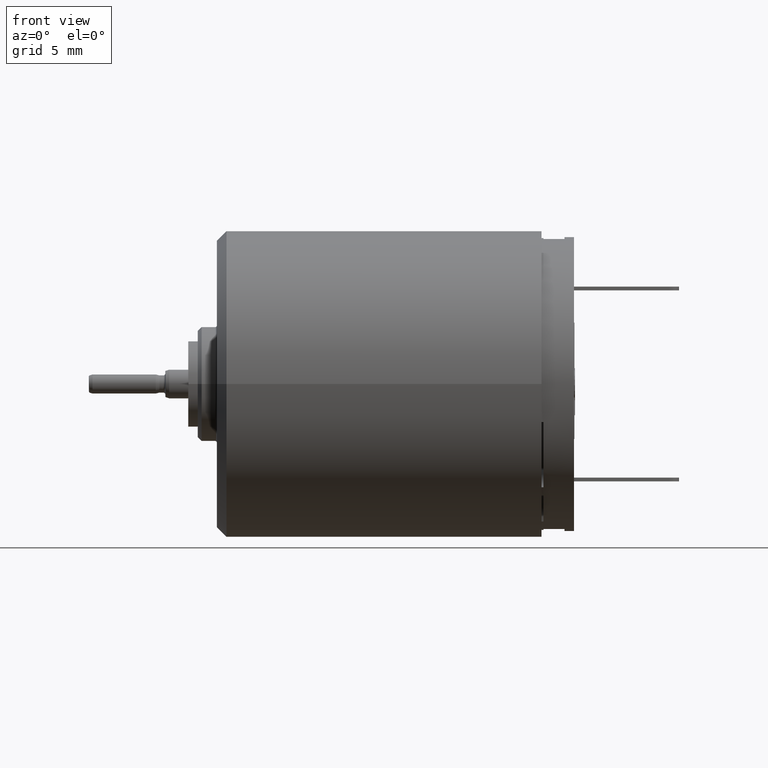
[diagram: clean part render]
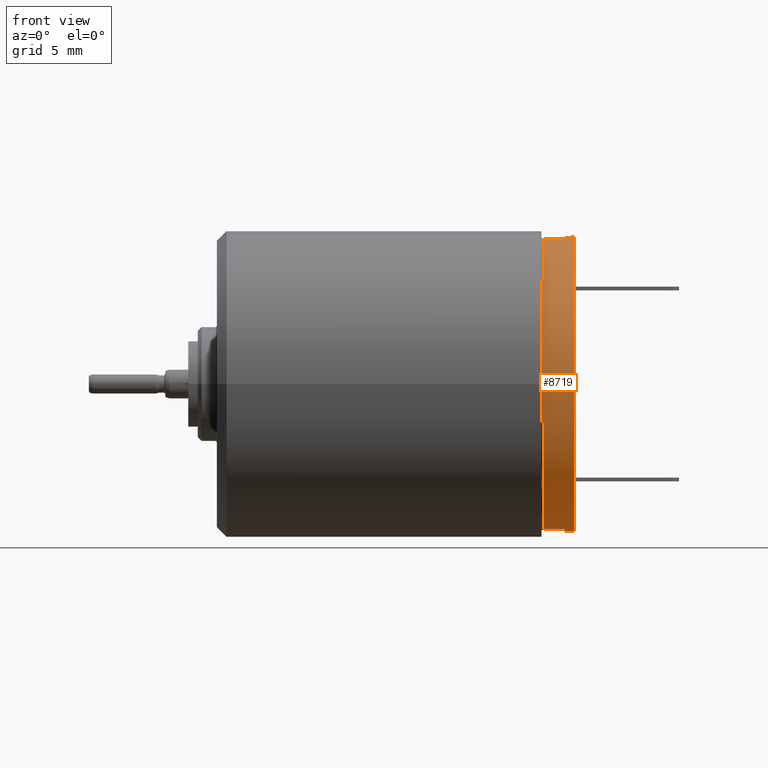
[diagram: same view with one face highlighted and labeled with its STEP entity id]
A machine part, front view. The second image highlights one B-rep face of the part: STEP entity #8719.
In plain terms, the highlighted cylindrical surface (partial cylindrical patch) has radius 7.7 mm, axis along (1, 0, 0).
Its self-contained STEP definition (entity closure, byte-faithful):
#9=CARTESIAN_POINT('',(1.7E0,1.203827803561E-14,0.E0));
#10=DIRECTION('',(-1.E0,0.E0,0.E0));
#11=DIRECTION('',(0.E0,9.656785166245E-1,-2.597402597402E-1));
#12=AXIS2_PLACEMENT_3D('',#9,#10,#11);
#14=CARTESIAN_POINT('',(1.7E0,1.203827803561E-14,0.E0));
#15=DIRECTION('',(-1.E0,0.E0,0.E0));
#16=DIRECTION('',(0.E0,4.590222619104E-14,-1.E0));
#17=AXIS2_PLACEMENT_3D('',#14,#15,#16);
#760=DIRECTION('',(1.E0,-1.312081756375E-13,-1.049665405100E-14));
#761=VECTOR('',#760,1.1E0);
#762=CARTESIAN_POINT('',(1.E-1,1.3E0,7.589466384404E0));
#763=LINE('',#762,#761);
#793=CARTESIAN_POINT('',(1.E-1,1.223422152348E-14,0.E0));
#794=DIRECTION('',(1.E0,0.E0,0.E0));
#795=DIRECTION('',(0.E0,9.656785166245E-1,2.597402597402E-1));
#796=AXIS2_PLACEMENT_3D('',#793,#794,#795);
#857=DIRECTION('',(-1.E0,-9.677592061053E-11,-9.614531393254E-11));
#858=VECTOR('',#857,1.E-1);
#859=CARTESIAN_POINT('',(1.E-1,-5.444722215136E0,5.444722215136E0));
#860=LINE('',#859,#858);
#880=CARTESIAN_POINT('',(1.E-1,1.223422152348E-14,0.E0));
#881=DIRECTION('',(1.E0,0.E0,0.E0));
#882=DIRECTION('',(0.E0,-1.688311688312E-1,9.856449849875E-1));
#883=AXIS2_PLACEMENT_3D('',#880,#881,#882);
#897=DIRECTION('',(-1.E0,-7.024683864901E-14,-4.521635591201E-14));
#898=VECTOR('',#897,1.1E0);
#899=CARTESIAN_POINT('',(1.2E0,-1.3E0,7.589466384404E0));
#900=LINE('',#899,#898);
#990=CARTESIAN_POINT('',(1.E-1,1.223422152348E-14,0.E0));
#991=DIRECTION('',(1.E0,0.E0,0.E0));
#992=DIRECTION('',(0.E0,-9.659258262891E-1,-2.588190451025E-1));
#993=AXIS2_PLACEMENT_3D('',#990,#991,#992);
#1039=DIRECTION('',(-1.E0,-1.132427485118E-13,-6.175615574477E-14));
#1040=VECTOR('',#1039,1.6E0);
#1041=CARTESIAN_POINT('',(1.7E0,7.435724578009E0,-2.E0));
#1042=LINE('',#1041,#1040);
#1043=DIRECTION('',(-1.E0,-4.178475747226E-14,-2.583791766400E-14));
#1044=VECTOR('',#1043,1.1E0);
#1045=CARTESIAN_POINT('',(1.2E0,-1.3E0,-7.589466384404E0));
#1046=LINE('',#1045,#1044);
#1067=CARTESIAN_POINT('',(0.E0,1.224646799147E-14,0.E0));
#1068=DIRECTION('',(1.E0,0.E0,0.E0));
#1069=DIRECTION('',(0.E0,-7.071067811865E-1,7.071067811865E-1));
#1070=AXIS2_PLACEMENT_3D('',#1067,#1068,#1069);
#1894=DIRECTION('',(1.E0,-2.042810365310E-12,1.589839371263E-12));
#1895=VECTOR('',#1894,1.E-1);
#1896=CARTESIAN_POINT('',(0.E0,-7.437628862426E0,-1.992906647289E0));
#1897=LINE('',#1896,#1895);
#1973=CARTESIAN_POINT('',(1.2E0,1.209951037557E-14,0.E0));
#1974=DIRECTION('',(1.E0,0.E0,0.E0));
#1975=DIRECTION('',(0.E0,-1.688311688312E-1,-9.856449849875E-1));
#1976=AXIS2_PLACEMENT_3D('',#1973,#1974,#1975);
#1978=CARTESIAN_POINT('',(1.2E0,1.209951037557E-14,0.E0));
#1979=DIRECTION('',(1.E0,0.E0,0.E0));
#1980=DIRECTION('',(0.E0,-3.603153418974E-14,-1.E0));
#1981=AXIS2_PLACEMENT_3D('',#1978,#1979,#1980);
#2007=CARTESIAN_POINT('',(1.2E0,1.209951037557E-14,0.E0));
#2008=DIRECTION('',(1.E0,0.E0,0.E0));
#2009=DIRECTION('',(0.E0,1.688311688312E-1,9.856449849875E-1));
#2010=AXIS2_PLACEMENT_3D('',#2007,#2008,#2009);
#2043=DIRECTION('',(-1.E0,7.791747045551E-14,4.602379083901E-14));
#2044=VECTOR('',#2043,1.1E0);
#2045=CARTESIAN_POINT('',(1.2E0,1.3E0,-7.589466384404E0));
#2046=LINE('',#2045,#2044);
#2090=CARTESIAN_POINT('',(1.E-1,1.223422152348E-14,0.E0));
#2091=DIRECTION('',(1.E0,0.E0,0.E0));
#2092=DIRECTION('',(0.E0,1.688311688312E-1,-9.856449849875E-1));
#2093=AXIS2_PLACEMENT_3D('',#2090,#2091,#2092);
#2177=DIRECTION('',(-1.E0,1.237898672457E-13,-9.978129433819E-14));
#2178=VECTOR('',#2177,1.6E0);
#2179=CARTESIAN_POINT('',(1.7E0,7.435724578009E0,2.E0));
#2180=LINE('',#2179,#2178);
#5945=CARTESIAN_POINT('',(1.7E0,7.435724578009E0,-2.E0));
#5946=CARTESIAN_POINT('',(1.7E0,3.655332890763E-13,-7.7E0));
#5947=VERTEX_POINT('',#5945);
#5948=VERTEX_POINT('',#5946);
#5949=CARTESIAN_POINT('',(1.7E0,7.435724578008E0,2.E0));
#5950=VERTEX_POINT('',#5949);
#6317=CARTESIAN_POINT('',(1.E-1,7.435724578009E0,-2.E0));
#6319=VERTEX_POINT('',#6317);
#6488=CARTESIAN_POINT('',(1.2E0,-1.3E0,-7.589466384404E0));
#6489=CARTESIAN_POINT('',(1.2E0,-2.656782903856E-13,-7.7E0));
#6490=VERTEX_POINT('',#6488);
#6491=VERTEX_POINT('',#6489);
#6492=CARTESIAN_POINT('',(1.2E0,1.3E0,-7.589466384404E0));
#6493=VERTEX_POINT('',#6492);
#6506=CARTESIAN_POINT('',(1.2E0,1.3E0,7.589466384404E0));
#6507=VERTEX_POINT('',#6506);
#6508=CARTESIAN_POINT('',(1.2E0,-1.3E0,7.589466384404E0));
#6509=VERTEX_POINT('',#6508);
#6738=CARTESIAN_POINT('',(1.E-1,-7.437628862426E0,-1.992906647289E0));
#6739=VERTEX_POINT('',#6738);
#6740=CARTESIAN_POINT('',(1.E-1,-1.3E0,-7.589466384404E0));
#6741=VERTEX_POINT('',#6740);
#6746=CARTESIAN_POINT('',(0.E0,-7.437628862426E0,-1.992906647289E0));
#6748=VERTEX_POINT('',#6746);
#6750=CARTESIAN_POINT('',(0.E0,-5.444722215136E0,5.444722215136E0));
#6751=VERTEX_POINT('',#6750);
#6930=CARTESIAN_POINT('',(1.E-1,-5.444722215136E0,5.444722215136E0));
#6931=VERTEX_POINT('',#6930);
#7048=CARTESIAN_POINT('',(1.E-1,1.3E0,-7.589466384404E0));
#7049=VERTEX_POINT('',#7048);
#7058=CARTESIAN_POINT('',(1.E-1,7.435724578009E0,2.E0));
#7059=CARTESIAN_POINT('',(1.E-1,1.300000000001E0,7.589466384404E0));
#7060=VERTEX_POINT('',#7058);
#7061=VERTEX_POINT('',#7059);
#7070=CARTESIAN_POINT('',(1.E-1,-1.3E0,7.589466384404E0));
#7071=VERTEX_POINT('',#7070);
#8686=CARTESIAN_POINT('',(-4.635975376023E-2,1.225214542388E-14,0.E0));
#8687=DIRECTION('',(1.E0,0.E0,0.E0));
#8688=DIRECTION('',(0.E0,0.E0,-1.E0));
#8689=AXIS2_PLACEMENT_3D('',#8686,#8687,#8688);
#8690=CYLINDRICAL_SURFACE('',#8689,7.7E0);
#8692=ORIENTED_EDGE('',*,*,#8691,.F.);
#8693=ORIENTED_EDGE('',*,*,#8431,.F.);
#8694=ORIENTED_EDGE('',*,*,#8455,.F.);
#8695=ORIENTED_EDGE('',*,*,#8471,.F.);
#8697=ORIENTED_EDGE('',*,*,#8696,.F.);
#8698=ORIENTED_EDGE('',*,*,#8235,.F.);
#8699=ORIENTED_EDGE('',*,*,#8261,.F.);
#8701=ORIENTED_EDGE('',*,*,#8700,.F.);
#8702=ORIENTED_EDGE('',*,*,#7723,.F.);
#8703=ORIENTED_EDGE('',*,*,#7721,.F.);
#8704=ORIENTED_EDGE('',*,*,#8144,.T.);
#8706=ORIENTED_EDGE('',*,*,#8705,.F.);
#8708=ORIENTED_EDGE('',*,*,#8707,.F.);
#8710=ORIENTED_EDGE('',*,*,#8709,.F.);
#8712=ORIENTED_EDGE('',*,*,#8711,.F.);
#8713=ORIENTED_EDGE('',*,*,#8678,.T.);
#8714=ORIENTED_EDGE('',*,*,#8638,.F.);
#8716=ORIENTED_EDGE('',*,*,#8715,.F.);
#8717=EDGE_LOOP('',(#8692,#8693,#8694,#8695,#8697,#8698,#8699,#8701,#8702,#8703,
#8704,#8706,#8708,#8710,#8712,#8713,#8714,#8716));
#8718=FACE_OUTER_BOUND('',#8717,.F.);
#8719=ADVANCED_FACE('',(#8718),#8690,.T.);
#13=CIRCLE('',#12,7.7E0);
#18=CIRCLE('',#17,7.7E0);
#797=CIRCLE('',#796,7.7E0);
#884=CIRCLE('',#883,7.7E0);
#994=CIRCLE('',#993,7.7E0);
#1071=CIRCLE('',#1070,7.7E0);
#1977=CIRCLE('',#1976,7.7E0);
#1982=CIRCLE('',#1981,7.7E0);
#2011=CIRCLE('',#2010,7.7E0);
#2094=CIRCLE('',#2093,7.7E0);
#7721=EDGE_CURVE('',#5947,#5948,#13,.T.);
#7723=EDGE_CURVE('',#5948,#5950,#18,.T.);
#8144=EDGE_CURVE('',#5947,#6319,#1042,.T.);
#8235=EDGE_CURVE('',#7061,#6507,#763,.T.);
#8261=EDGE_CURVE('',#7060,#7061,#797,.T.);
#8431=EDGE_CURVE('',#6931,#6751,#860,.T.);
#8455=EDGE_CURVE('',#7071,#6931,#884,.T.);
#8471=EDGE_CURVE('',#6509,#7071,#900,.T.);
#8638=EDGE_CURVE('',#6739,#6741,#994,.T.);
#8678=EDGE_CURVE('',#6490,#6741,#1046,.T.);
#8691=EDGE_CURVE('',#6751,#6748,#1071,.T.);
#8696=EDGE_CURVE('',#6507,#6509,#2011,.T.);
#8700=EDGE_CURVE('',#5950,#7060,#2180,.T.);
#8705=EDGE_CURVE('',#7049,#6319,#2094,.T.);
#8707=EDGE_CURVE('',#6493,#7049,#2046,.T.);
#8709=EDGE_CURVE('',#6491,#6493,#1982,.T.);
#8711=EDGE_CURVE('',#6490,#6491,#1977,.T.);
#8715=EDGE_CURVE('',#6748,#6739,#1897,.T.);